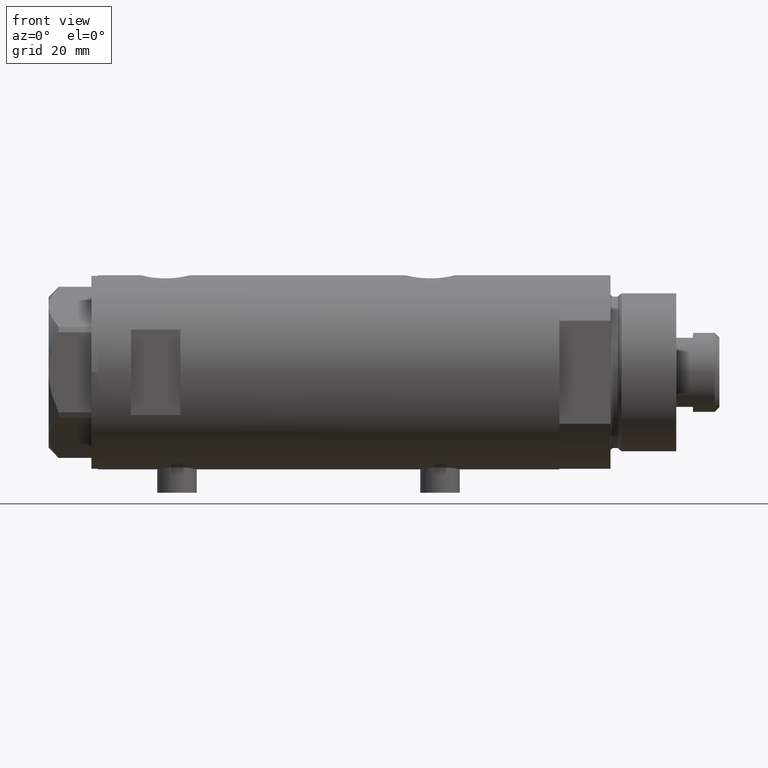
[diagram: clean part render]
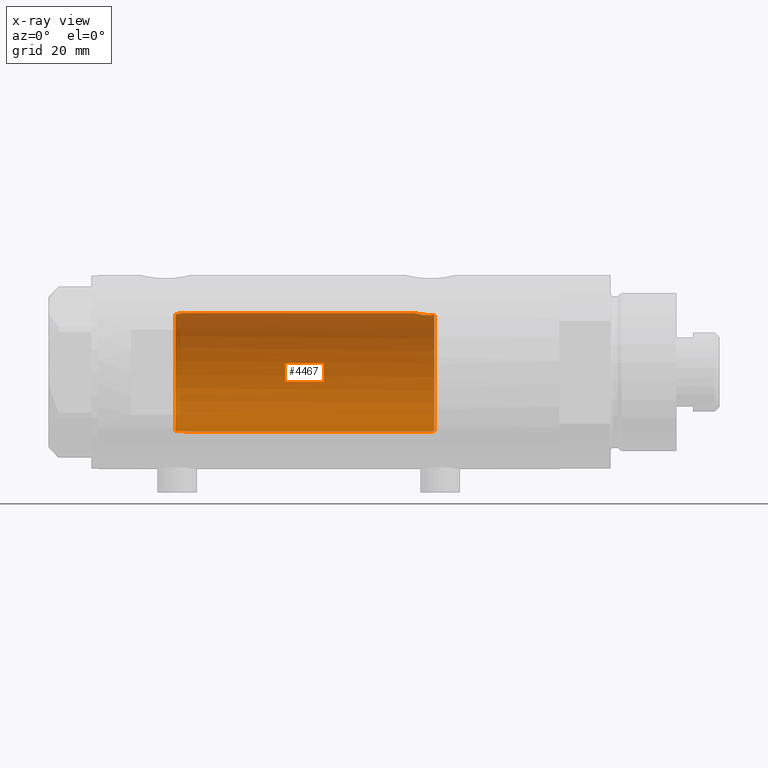
[diagram: x-ray — body ghosted, one internal face saturated and labeled with its STEP entity id]
A machine part, front view, then the same camera in x-ray: the body is ghosted and one INTERNAL B-rep face — a face not visible from any outside direction — is saturated and labeled: STEP entity #4467.
In plain terms, the highlighted cylindrical surface (partial cylindrical patch) has radius 18 mm, axis along (1, 0, -0).
Its self-contained STEP definition (entity closure, byte-faithful):
#7 = B_SPLINE_CURVE_WITH_KNOTS ( 'NONE', 3,
 ( #2390, #530, #2032, #3473, #3530, #2722, #588, #3843 ),
 .UNSPECIFIED., .F., .F.,
 ( 4, 2, 2, 4 ),
 ( 0.01360098575045322854, 0.01411306367951528987, 0.01462514160857735120, 0.01564929746670147212 ),
 .UNSPECIFIED. ) ;
#34 = CARTESIAN_POINT ( 'NONE',  ( -17.83255450012701004, 2.449489742783180546, 46.59999999999999432 ) ) ;
#57 = B_SPLINE_CURVE_WITH_KNOTS ( 'NONE', 3,
 ( #489, #2705, #2790, #2737, #4219, #3152, #3408, #902, #3857, #846, #3484, #176, #97, #4608 ),
 .UNSPECIFIED., .F., .F.,
 ( 4, 2, 2, 2, 2, 2, 4 ),
 ( 0.02614985543880328500, 0.02725214354003946404, 0.02780328759065755356, 0.02835443164127564308, 0.02890557569189372913, 0.02945671974251181865, 0.03055900784374799770 ),
 .UNSPECIFIED. ) ;
#93 = AXIS2_PLACEMENT_3D ( 'NONE', #1793, #1715, #2875 ) ;
#97 = CARTESIAN_POINT ( 'NONE',  ( 18.00000000000001066, 0.3728474842072352358, 44.73499999999999233 ) ) ;
#176 = CARTESIAN_POINT ( 'NONE',  ( 17.98843015915091570, 0.7391836159806497442, 44.77731130524778536 ) ) ;
#193 = CARTESIAN_POINT ( 'NONE',  ( -18.00000000000000000, 3.061617490167439571E-16, 43.59999999999999432 ) ) ;
#238 = CARTESIAN_POINT ( 'NONE',  ( 17.34671983132638928, 4.806279138776324622, -31.74012329268312982 ) ) ;
#269 = CARTESIAN_POINT ( 'NONE',  ( 17.71174132276682300, 3.211689381115074404, -27.24121359250871421 ) ) ;
#285 = VERTEX_POINT ( 'NONE', #3115 ) ;
#317 = CARTESIAN_POINT ( 'NONE',  ( 18.00000000000000000, 5.958021437579254357E-16, -26.03499999999998948 ) ) ;
#322 = CARTESIAN_POINT ( 'NONE',  ( -17.92135699193088882, 1.687027558082476064, 44.24588287565643441 ) ) ;
#363 = VERTEX_POINT ( 'NONE', #193 ) ;
#489 = CARTESIAN_POINT ( 'NONE',  ( 17.58783030962034033, 3.829911878881814058, 46.59999999999999432 ) ) ;
#514 = CARTESIAN_POINT ( 'NONE',  ( 18.00000000000000000, 0.000000000000000000, 44.73499999999999233 ) ) ;
#530 = CARTESIAN_POINT ( 'NONE',  ( -17.91832049203241439, 1.716810780632728184, -31.97468596615661696 ) ) ;
#588 = CARTESIAN_POINT ( 'NONE',  ( -18.00000000000000711, 0.3463326441765515185, -31.30000000000000071 ) ) ;
#603 = CARTESIAN_POINT ( 'NONE',  ( 17.53642083926971651, 4.065376572064631766, -28.20260027543616133 ) ) ;
#719 = VERTEX_POINT ( 'NONE', #34 ) ;
#723 = CARTESIAN_POINT ( 'NONE',  ( -17.82749843654113420, 2.486298441295540229, 46.41967494109754000 ) ) ;
#768 = VERTEX_POINT ( 'NONE', #514 ) ;
#842 = ORIENTED_EDGE ( 'NONE', *, *, #4124, .F. ) ;
#846 = CARTESIAN_POINT ( 'NONE',  ( 17.94167814235965608, 1.458276351914867375, 44.95504464479716233 ) ) ;
#902 = CARTESIAN_POINT ( 'NONE',  ( 17.89217382667230538, 1.974183297225218015, 45.14981302266163965 ) ) ;
#966 = CARTESIAN_POINT ( 'NONE',  ( 17.63589737371338728, 3.604488512479870899, -27.62742655266249514 ) ) ;
#990 = CARTESIAN_POINT ( 'NONE',  ( 17.61032289555864949, 3.726910670425181316, -27.76756985850231274 ) ) ;
#1077 = DIRECTION ( 'NONE',  ( 0.000000000000000000, 0.000000000000000000, -1.000000000000000000 ) ) ;
#1358 = CARTESIAN_POINT ( 'NONE',  ( -18.00000000000000000, 0.3684436523298872390, 43.59999999999999432 ) ) ;
#1378 = CARTESIAN_POINT ( 'NONE',  ( 17.91189082287941758, 1.809824880389070856, -26.36912370284669294 ) ) ;
#1398 = ORIENTED_EDGE ( 'NONE', *, *, #1818, .F. ) ;
#1404 = CARTESIAN_POINT ( 'NONE',  ( -17.88283752013080274, 2.053809615874006678, 44.66247768058084944 ) ) ;
#1409 = CARTESIAN_POINT ( 'NONE',  ( 0.000000000000000000, 0.000000000000000000, 70.09999999999999432 ) ) ;
#1412 = EDGE_CURVE ( 'NONE', #1425, #719, #4282, .T. ) ;
#1425 = VERTEX_POINT ( 'NONE', #4335 ) ;
#1433 = CIRCLE ( 'NONE', #4444, 18.00000000000000000 ) ;
#1450 = CARTESIAN_POINT ( 'NONE',  ( -17.85029215802978086, 2.318176074868584902, 45.14613149013026572 ) ) ;
#1514 = ORIENTED_EDGE ( 'NONE', *, *, #4687, .F. ) ;
#1683 = CARTESIAN_POINT ( 'NONE',  ( 17.68656644271517919, 3.347025706529857647, -27.36453774950910756 ) ) ;
#1715 = DIRECTION ( 'NONE',  ( 0.000000000000000000, 0.000000000000000000, 1.000000000000000000 ) ) ;
#1744 = CARTESIAN_POINT ( 'NONE',  ( -18.00000000000000000, 3.061617490167439571E-16, 43.59999999999999432 ) ) ;
#1749 = DIRECTION ( 'NONE',  ( -0.000000000000000000, -0.000000000000000000, -1.000000000000000000 ) ) ;
#1763 = CARTESIAN_POINT ( 'NONE',  ( 17.76085061188611292, 2.927954048074870030, -27.01043039029093151 ) ) ;
#1777 = ORIENTED_EDGE ( 'NONE', *, *, #3111, .T. ) ;
#1793 = CARTESIAN_POINT ( 'NONE',  ( 0.000000000000000000, 0.000000000000000000, 46.59999999999999432 ) ) ;
#1818 = EDGE_CURVE ( 'NONE', #2582, #4554, #2126, .T. ) ;
#1903 = EDGE_CURVE ( 'NONE', #363, #3563, #4766, .T. ) ;
#1922 = CARTESIAN_POINT ( 'NONE',  ( 17.37157951943346035, 4.714681855650494136, -32.09999999999998721 ) ) ;
#2032 = CARTESIAN_POINT ( 'NONE',  ( -17.93028482699292425, 1.588885888720747319, -31.86224988169317740 ) ) ;
#2075 = CARTESIAN_POINT ( 'NONE',  ( 17.97733715731490989, 0.9209699998971186963, -26.11935966604423598 ) ) ;
#2126 = B_SPLINE_CURVE_WITH_KNOTS ( 'NONE', 3,
 ( #317, #3233, #3255, #4698, #2075, #2129, #1378, #2514, #4305, #2486, #1763, #269, #1683, #966, #990, #603, #4720, #3158, #3603, #2870, #4639, #3545, #2847, #4669, #3574, #238, #4741 ),
 .UNSPECIFIED., .F., .F.,
 ( 4, 2, 2, 2, 2, 2, 2, 2, 2, 2, 1, 2, 2, 4 ),
 ( 0.01528157848519460724, 0.01583467956029641077, 0.01638778063539821778, 0.01749398278560182485, 0.01804708386070362838, 0.01860018493580543539, 0.01915328601090723892, 0.01970638708600904593, 0.02081258923621266341, 0.02136569031131447041, 0.02191879138641628089, 0.02247189246151808789, 0.02302499353661989837, 0.02413119568682349503 ),
 .UNSPECIFIED. ) ;
#2129 = CARTESIAN_POINT ( 'NONE',  ( 17.94405978035183935, 1.463580074031384681, -26.24553017623722795 ) ) ;
#2132 = CARTESIAN_POINT ( 'NONE',  ( -17.82958311517956673, 2.471426257451379449, 45.68046645260446326 ) ) ;
#2320 = AXIS2_PLACEMENT_3D ( 'NONE', #1409, #1749, #2879 ) ;
#2390 = CARTESIAN_POINT ( 'NONE',  ( -17.90642342847950275, 1.833030277983155099, -32.09999999999931930 ) ) ;
#2486 = CARTESIAN_POINT ( 'NONE',  ( 17.78478726694685363, 2.779555353823084385, -26.90297143050466389 ) ) ;
#2514 = CARTESIAN_POINT ( 'NONE',  ( 17.85236636886078188, 2.306694554785099882, -26.61264586133006205 ) ) ;
#2559 = CARTESIAN_POINT ( 'NONE',  ( -17.82508408272473588, 2.503276281002380976, 46.23510831259082465 ) ) ;
#2582 = VERTEX_POINT ( 'NONE', #4615 ) ;
#2705 = CARTESIAN_POINT ( 'NONE',  ( 17.63704841537101231, 3.603891093161669890, 46.31145343596539732 ) ) ;
#2722 = CARTESIAN_POINT ( 'NONE',  ( -17.98949107760678245, 0.6899666364176350042, -31.37303358989279545 ) ) ;
#2737 = CARTESIAN_POINT ( 'NONE',  ( 17.76196254920472128, 2.921230608637938264, 45.70535341986154521 ) ) ;
#2758 = EDGE_CURVE ( 'NONE', #363, #719, #2838, .T. ) ;
#2790 = CARTESIAN_POINT ( 'NONE',  ( 17.68814035493779357, 3.348626323852638365, 46.05183600219630335 ) ) ;
#2838 = B_SPLINE_CURVE_WITH_KNOTS ( 'NONE', 3,
 ( #1744, #1358, #4768, #2849, #3971, #322, #3257, #1404, #3216, #1450, #4403, #2132, #4381, #2559, #723, #4701 ),
 .UNSPECIFIED., .F., .F.,
 ( 4, 2, 2, 2, 2, 2, 2, 4 ),
 ( 0.007825597788866840016, 0.008929372539743372916, 0.009481259915181635897, 0.01003314729061989888, 0.01058503466605816012, 0.01113692204149642484, 0.01168880941693468609, 0.01224069679237294907 ),
 .UNSPECIFIED. ) ;
#2847 = CARTESIAN_POINT ( 'NONE',  ( 17.33118376015917761, 4.861110225087389658, -30.63112109378173287 ) ) ;
#2849 = CARTESIAN_POINT ( 'NONE',  ( -17.95816418424195149, 1.237771781631973544, 43.92014148713398924 ) ) ;
#2870 = CARTESIAN_POINT ( 'NONE',  ( 17.38237957915196930, 4.675094569549004930, -29.54138980228257338 ) ) ;
#2875 = DIRECTION ( 'NONE',  ( 1.000000000000000000, 0.000000000000000000, 0.000000000000000000 ) ) ;
#2879 = DIRECTION ( 'NONE',  ( -1.000000000000000000, 0.000000000000000000, 0.000000000000000000 ) ) ;
#2891 = VECTOR ( 'NONE', #4400, 1000.000000000000000 ) ;
#2967 = CARTESIAN_POINT ( 'NONE',  ( -18.00000000000000000, 0.000000000000000000, 70.09999999999999432 ) ) ;
#3008 = EDGE_CURVE ( 'NONE', #285, #3563, #7, .T. ) ;
#3111 = EDGE_CURVE ( 'NONE', #285, #4554, #1433, .T. ) ;
#3115 = CARTESIAN_POINT ( 'NONE',  ( -17.90642342847950275, 1.833030277983155099, -32.09999999999931930 ) ) ;
#3152 = CARTESIAN_POINT ( 'NONE',  ( 17.83158514913445103, 2.461498934476296085, 45.39965995681277633 ) ) ;
#3158 = CARTESIAN_POINT ( 'NONE',  ( 17.43128843254318028, 4.489613141718952427, -29.01700003713170517 ) ) ;
#3163 = DIRECTION ( 'NONE',  ( -0.000000000000000000, -0.000000000000000000, -1.000000000000000000 ) ) ;
#3216 = CARTESIAN_POINT ( 'NONE',  ( -17.87088460660653766, 2.153683778660673287, 44.81724841463823594 ) ) ;
#3228 = DIRECTION ( 'NONE',  ( -1.000000000000000000, 0.000000000000000000, 0.000000000000000000 ) ) ;
#3233 = CARTESIAN_POINT ( 'NONE',  ( 18.00000000000000355, 0.1844036484100888829, -26.03499999999999659 ) ) ;
#3255 = CARTESIAN_POINT ( 'NONE',  ( 17.99716691696286119, 0.3685254503903833134, -26.04545042928660337 ) ) ;
#3257 = CARTESIAN_POINT ( 'NONE',  ( -17.90830209998921063, 1.818440982043828980, 44.37434744171714129 ) ) ;
#3263 = FACE_OUTER_BOUND ( 'NONE', #4248, .T. ) ;
#3266 = ORIENTED_EDGE ( 'NONE', *, *, #1412, .T. ) ;
#3408 = CARTESIAN_POINT ( 'NONE',  ( 17.85293122918850273, 2.302201220737755794, 45.31031080804816469 ) ) ;
#3473 = CARTESIAN_POINT ( 'NONE',  ( -17.95286768021396995, 1.309280107997290443, -31.66336257470373639 ) ) ;
#3484 = CARTESIAN_POINT ( 'NONE',  ( 17.95540531162507136, 1.279032093992328756, 44.90250861430337892 ) ) ;
#3530 = CARTESIAN_POINT ( 'NONE',  ( -17.96336505771914105, 1.158437137172629861, -31.57804627005672415 ) ) ;
#3545 = CARTESIAN_POINT ( 'NONE',  ( 17.34085862114803334, 4.826483754267694160, -30.26145238513612767 ) ) ;
#3563 = VERTEX_POINT ( 'NONE', #4291 ) ;
#3574 = CARTESIAN_POINT ( 'NONE',  ( 17.33262691996380767, 4.855935766715061774, -31.37488940890200695 ) ) ;
#3603 = CARTESIAN_POINT ( 'NONE',  ( 17.41328271218089441, 4.558641711475903691, -29.19087254718659352 ) ) ;
#3626 = VECTOR ( 'NONE', #3163, 1000.000000000000000 ) ;
#3843 = CARTESIAN_POINT ( 'NONE',  ( -18.00000000000000000, 0.000000000000000000, -31.29999999999999361 ) ) ;
#3857 = CARTESIAN_POINT ( 'NONE',  ( 17.91007218376326193, 1.805463612197654166, 45.07866376881659676 ) ) ;
#3898 = LINE ( 'NONE', #4284, #3626 ) ;
#3971 = CARTESIAN_POINT ( 'NONE',  ( -17.94624864476197601, 1.397590066628590089, 44.01900161024211400 ) ) ;
#4124 = EDGE_CURVE ( 'NONE', #1425, #768, #57, .T. ) ;
#4137 = ORIENTED_EDGE ( 'NONE', *, *, #3008, .F. ) ;
#4163 = ORIENTED_EDGE ( 'NONE', *, *, #1903, .T. ) ;
#4219 = CARTESIAN_POINT ( 'NONE',  ( 17.78617492856930227, 2.770629413254892537, 45.59682049650071178 ) ) ;
#4242 = ORIENTED_EDGE ( 'NONE', *, *, #2758, .F. ) ;
#4248 = EDGE_LOOP ( 'NONE', ( #1514, #842, #3266, #4242, #4163, #4137, #1777, #1398 ) ) ;
#4282 = CIRCLE ( 'NONE', #93, 18.00000000000000000 ) ;
#4284 = CARTESIAN_POINT ( 'NONE',  ( 18.00000000000000000, 2.204364238465235033E-15, 70.09999999999999432 ) ) ;
#4291 = CARTESIAN_POINT ( 'NONE',  ( -18.00000000000000000, 0.000000000000000000, -31.29999999999999361 ) ) ;
#4300 = CARTESIAN_POINT ( 'NONE',  ( 0.000000000000000000, 0.000000000000000000, -32.09999999999998721 ) ) ;
#4305 = CARTESIAN_POINT ( 'NONE',  ( 17.83051055968251930, 2.469307448774135771, -26.70420614498792133 ) ) ;
#4335 = CARTESIAN_POINT ( 'NONE',  ( 17.58783030962034033, 3.829911878881814058, 46.59999999999999432 ) ) ;
#4381 = CARTESIAN_POINT ( 'NONE',  ( -17.82614870471583401, 2.495683684402668412, 45.86291490437698570 ) ) ;
#4400 = DIRECTION ( 'NONE',  ( -0.000000000000000000, -0.000000000000000000, -1.000000000000000000 ) ) ;
#4403 = CARTESIAN_POINT ( 'NONE',  ( -17.84158955897572341, 2.383204526717108696, 45.32263758307627910 ) ) ;
#4430 = CYLINDRICAL_SURFACE ( 'NONE', #2320, 18.00000000000000000 ) ;
#4444 = AXIS2_PLACEMENT_3D ( 'NONE', #4300, #1077, #3228 ) ;
#4467 = ADVANCED_FACE ( 'NONE', ( #3263 ), #4430, .F. ) ;
#4554 = VERTEX_POINT ( 'NONE', #1922 ) ;
#4608 = CARTESIAN_POINT ( 'NONE',  ( 18.00000000000000000, 0.000000000000000000, 44.73499999999999233 ) ) ;
#4615 = CARTESIAN_POINT ( 'NONE',  ( 18.00000000000000000, 5.958021437579254357E-16, -26.03499999999998948 ) ) ;
#4639 = CARTESIAN_POINT ( 'NONE',  ( 17.35631194664785681, 4.771042759406570077, -29.89667763205954643 ) ) ;
#4669 = CARTESIAN_POINT ( 'NONE',  ( 17.32928165965088141, 4.867855194001449171, -30.81899018256647693 ) ) ;
#4687 = EDGE_CURVE ( 'NONE', #768, #2582, #3898, .T. ) ;
#4698 = CARTESIAN_POINT ( 'NONE',  ( 17.98587882862718601, 0.7362002489460848231, -26.08746722239206761 ) ) ;
#4701 = CARTESIAN_POINT ( 'NONE',  ( -17.83255450012701004, 2.449489742783180546, 46.59999999999999432 ) ) ;
#4720 = CARTESIAN_POINT ( 'NONE',  ( 17.49030773641652914, 4.256160900234553068, -28.51469509681785652 ) ) ;
#4741 = CARTESIAN_POINT ( 'NONE',  ( 17.37157951943346035, 4.714681855650494136, -32.09999999999998721 ) ) ;
#4766 = LINE ( 'NONE', #2967, #2891 ) ;
#4768 = CARTESIAN_POINT ( 'NONE',  ( -17.98790814410162042, 0.7389993272946837610, 43.68352974933832655 ) ) ;